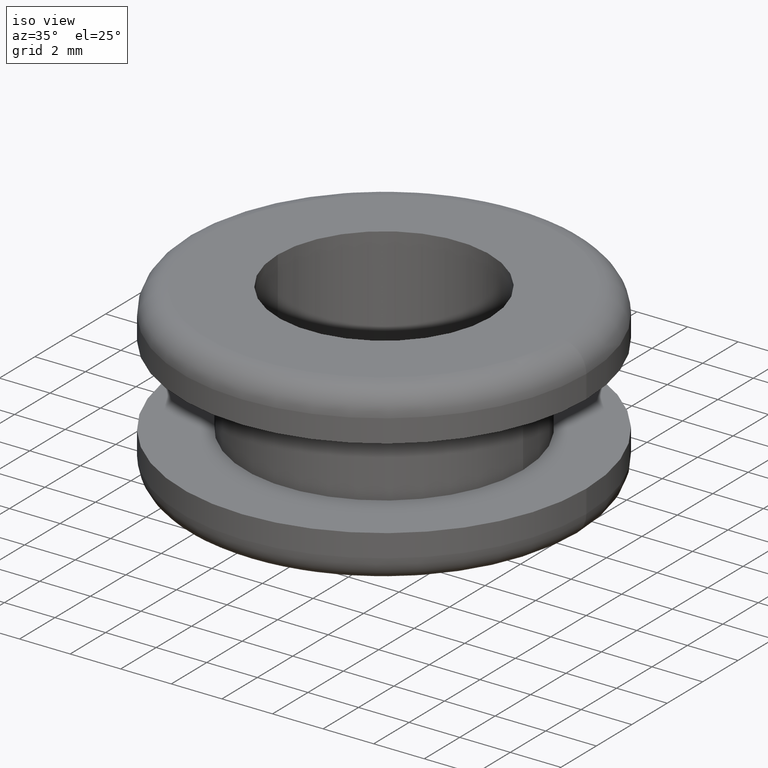
[diagram: clean part render]
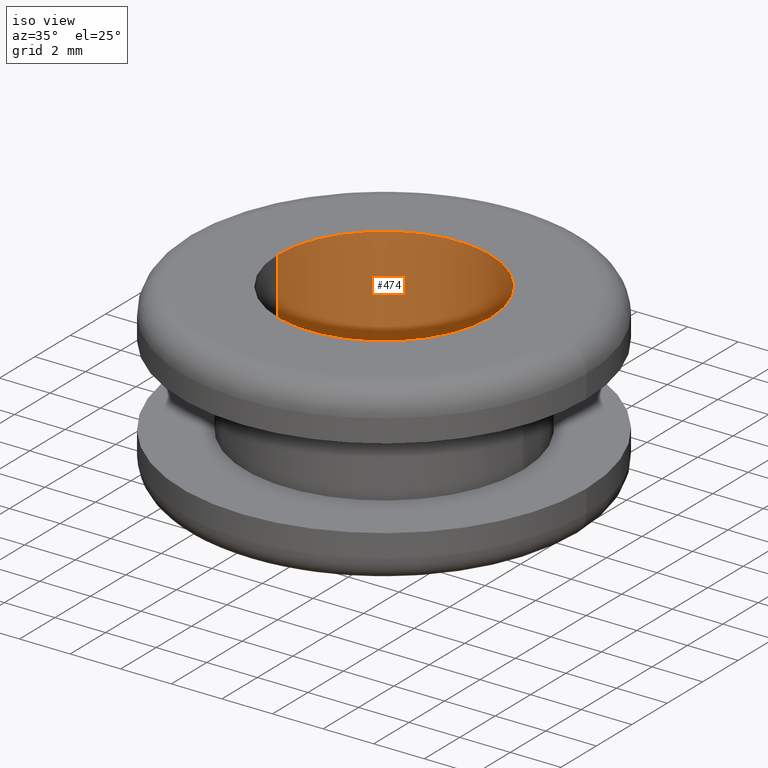
[diagram: same view with one face highlighted and labeled with its STEP entity id]
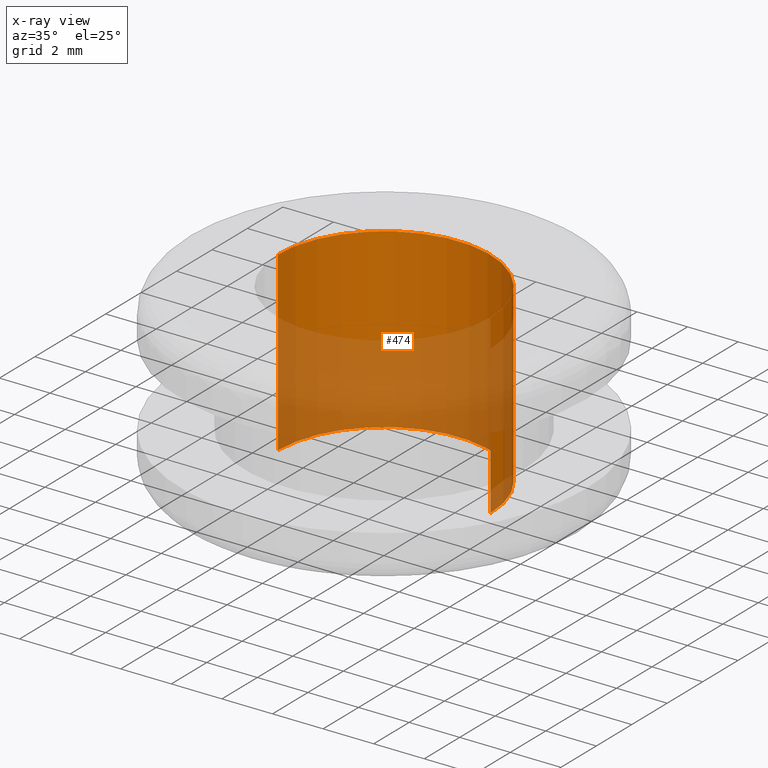
[diagram: x-ray of the same camera — body ghosted, the highlighted face saturated]
A machine part, iso view. The second image highlights one B-rep face of the part: STEP entity #474.
The next image is the same camera in x-ray: the body ghosted, the highlighted face saturated — about 52% of this face is hidden behind the body in this view.
In plain terms, the highlighted cylindrical surface (partial cylindrical patch) has radius 4.2 mm, axis along (0, 0, -1).
Its self-contained STEP definition (entity closure, byte-faithful):
#2 = VERTEX_POINT ( 'NONE', #452 ) ;
#3 = CARTESIAN_POINT ( 'NONE',  ( 103.4049372964547000, 5.143516556265810400E-016, 147.3726952467922000 ) ) ;
#16 = AXIS2_PLACEMENT_3D ( 'NONE', #226, #290, #221 ) ;
#30 = EDGE_CURVE ( 'NONE', #363, #289, #156, .T. ) ;
#47 = AXIS2_PLACEMENT_3D ( 'NONE', #416, #165, #340 ) ;
#50 = DIRECTION ( 'NONE',  ( -1.000000000000000000, 0.0000000000000000000, 0.0000000000000000000 ) ) ;
#76 = LINE ( 'NONE', #229, #166 ) ;
#94 = ORIENTED_EDGE ( 'NONE', *, *, #313, .T. ) ;
#107 = DIRECTION ( 'NONE',  ( 0.0000000000000000000, 0.0000000000000000000, -1.000000000000000000 ) ) ;
#149 = CARTESIAN_POINT ( 'NONE',  ( 103.4049372964547000, 5.143516556265810400E-016, 140.3726952467922000 ) ) ;
#156 = CIRCLE ( 'NONE', #16, 4.199999999875012200 ) ;
#165 = DIRECTION ( 'NONE',  ( 0.0000000000000000000, 0.0000000000000000000, -1.000000000000000000 ) ) ;
#166 = VECTOR ( 'NONE', #107, 1000.000000000000000 ) ;
#176 = AXIS2_PLACEMENT_3D ( 'NONE', #300, #375, #50 ) ;
#188 = VECTOR ( 'NONE', #432, 1000.000000000000000 ) ;
#201 = VERTEX_POINT ( 'NONE', #3 ) ;
#211 = ORIENTED_EDGE ( 'NONE', *, *, #271, .F. ) ;
#221 = DIRECTION ( 'NONE',  ( -1.000000000000000000, 0.0000000000000000000, 0.0000000000000000000 ) ) ;
#226 = CARTESIAN_POINT ( 'NONE',  ( 99.20493729657970100, 0.0000000000000000000, 140.3726952467922000 ) ) ;
#229 = CARTESIAN_POINT ( 'NONE',  ( 95.00493729670468200, 0.0000000000000000000, 0.0000000000000000000 ) ) ;
#230 = ORIENTED_EDGE ( 'NONE', *, *, #422, .F. ) ;
#233 = CARTESIAN_POINT ( 'NONE',  ( 95.00493729670468200, 0.0000000000000000000, 140.3726952467922000 ) ) ;
#271 = EDGE_CURVE ( 'NONE', #201, #289, #456, .T. ) ;
#283 = FACE_OUTER_BOUND ( 'NONE', #391, .T. ) ;
#289 = VERTEX_POINT ( 'NONE', #149 ) ;
#290 = DIRECTION ( 'NONE',  ( 0.0000000000000000000, 0.0000000000000000000, -1.000000000000000000 ) ) ;
#300 = CARTESIAN_POINT ( 'NONE',  ( 99.20493729657970100, 0.0000000000000000000, 0.0000000000000000000 ) ) ;
#313 = EDGE_CURVE ( 'NONE', #2, #363, #76, .T. ) ;
#327 = ORIENTED_EDGE ( 'NONE', *, *, #30, .T. ) ;
#332 = CARTESIAN_POINT ( 'NONE',  ( 103.4049372964547000, 5.143516556265813300E-016, 0.0000000000000000000 ) ) ;
#340 = DIRECTION ( 'NONE',  ( -1.000000000000000000, 0.0000000000000000000, 0.0000000000000000000 ) ) ;
#363 = VERTEX_POINT ( 'NONE', #233 ) ;
#375 = DIRECTION ( 'NONE',  ( 0.0000000000000000000, 0.0000000000000000000, -1.000000000000000000 ) ) ;
#391 = EDGE_LOOP ( 'NONE', ( #211, #230, #94, #327 ) ) ;
#409 = CIRCLE ( 'NONE', #47, 4.199999999875012200 ) ;
#416 = CARTESIAN_POINT ( 'NONE',  ( 99.20493729657970100, 0.0000000000000000000, 147.3726952467922000 ) ) ;
#422 = EDGE_CURVE ( 'NONE', #2, #201, #409, .T. ) ;
#432 = DIRECTION ( 'NONE',  ( 0.0000000000000000000, 0.0000000000000000000, -1.000000000000000000 ) ) ;
#451 = CYLINDRICAL_SURFACE ( 'NONE', #176, 4.199999999875012200 ) ;
#452 = CARTESIAN_POINT ( 'NONE',  ( 95.00493729670468200, 0.0000000000000000000, 147.3726952467922000 ) ) ;
#456 = LINE ( 'NONE', #332, #188 ) ;
#474 = ADVANCED_FACE ( 'NONE', ( #283 ), #451, .F. ) ;